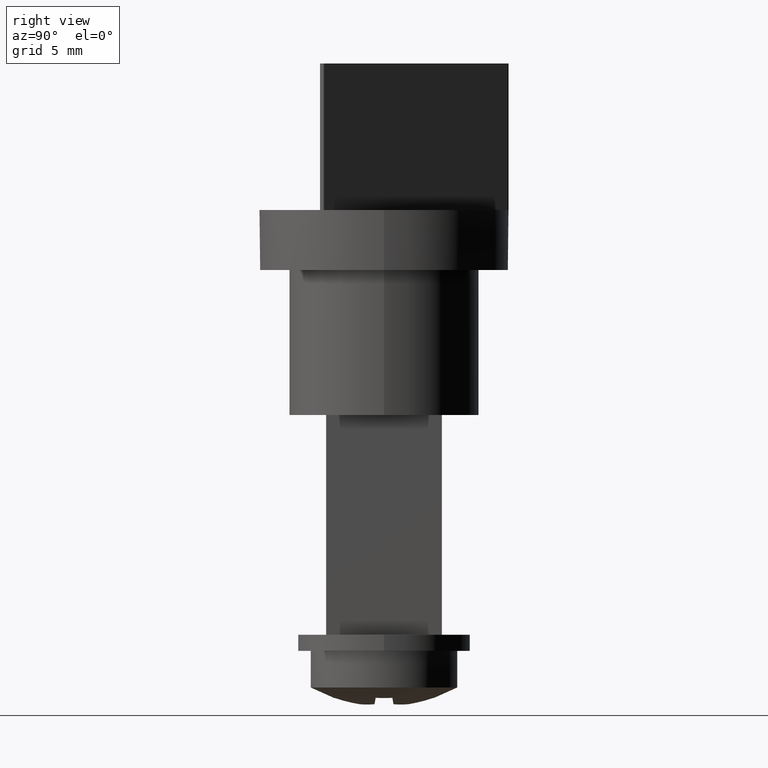
[diagram: clean part render]
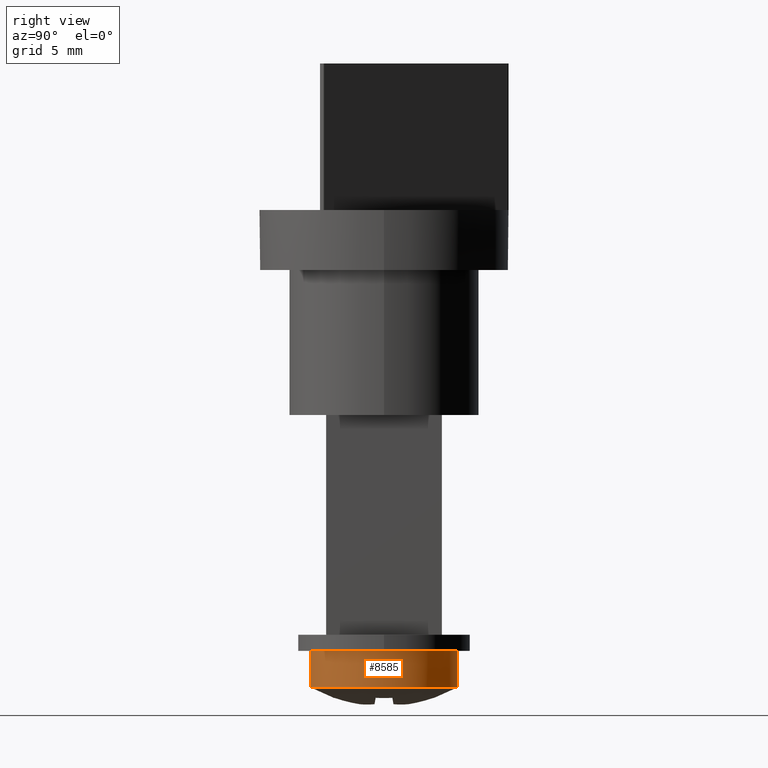
[diagram: same view with one face highlighted and labeled with its STEP entity id]
A machine part, right view. The second image highlights one B-rep face of the part: STEP entity #8585.
In plain terms, the highlighted cylindrical surface (partial cylindrical patch) has radius 5 mm, axis along (0, 0, -1).
Its self-contained STEP definition (entity closure, byte-faithful):
#65 = AXIS2_PLACEMENT_3D ( 'NONE', #333, #3984, #9191 ) ;
#90 = CIRCLE ( 'NONE', #8762, 4.999999999999998224 ) ;
#333 = CARTESIAN_POINT ( 'NONE',  ( 1.965304695223972746E-15, 7.900000000000000355, 0.000000000000000000 ) ) ;
#708 = EDGE_CURVE ( 'NONE', #13808, #4075, #14159, .T. ) ;
#1051 = CARTESIAN_POINT ( 'NONE',  ( 2.577628094797648881E-15, 6.600000000000001421, -4.999999999999998224 ) ) ;
#1259 = DIRECTION ( 'NONE',  ( -0.000000000000000000, 1.000000000000000000, -0.000000000000000000 ) ) ;
#1278 = CARTESIAN_POINT ( 'NONE',  ( 2.577628094797648881E-15, 7.900000000000000355, -4.999999999999999112 ) ) ;
#1325 = DIRECTION ( 'NONE',  ( -0.000000000000000000, 1.000000000000000000, -0.000000000000000000 ) ) ;
#2292 = DIRECTION ( 'NONE',  ( -0.000000000000000000, 1.000000000000000000, -0.000000000000000000 ) ) ;
#2485 = EDGE_CURVE ( 'NONE', #3150, #11377, #9333, .T. ) ;
#2576 = EDGE_CURVE ( 'NONE', #12429, #4075, #90, .T. ) ;
#2682 = DIRECTION ( 'NONE',  ( 0.000000000000000000, 0.000000000000000000, 1.000000000000000000 ) ) ;
#3150 = VERTEX_POINT ( 'NONE', #6968 ) ;
#3276 = CIRCLE ( 'NONE', #3339, 4.999999999999999112 ) ;
#3315 = CARTESIAN_POINT ( 'NONE',  ( 1.965304695223972746E-15, 6.600000000000001421, 0.000000000000000000 ) ) ;
#3339 = AXIS2_PLACEMENT_3D ( 'NONE', #12517, #1259, #7365 ) ;
#3555 = ORIENTED_EDGE ( 'NONE', *, *, #2485, .F. ) ;
#3561 = VECTOR ( 'NONE', #2292, 1000.000000000000000 ) ;
#3888 = ORIENTED_EDGE ( 'NONE', *, *, #12505, .F. ) ;
#3984 = DIRECTION ( 'NONE',  ( -0.000000000000000000, 1.000000000000000000, -0.000000000000000000 ) ) ;
#4075 = VERTEX_POINT ( 'NONE', #5995 ) ;
#5407 = CIRCLE ( 'NONE', #12809, 4.999999999999998224 ) ;
#5995 = CARTESIAN_POINT ( 'NONE',  ( 1.965304695223972746E-15, 6.600000000000001421, 4.999999999999998224 ) ) ;
#6004 = VECTOR ( 'NONE', #7545, 1000.000000000000000 ) ;
#6968 = CARTESIAN_POINT ( 'NONE',  ( 2.577628094797648881E-15, 4.100000000000001421, -4.999999999999999112 ) ) ;
#7230 = DIRECTION ( 'NONE',  ( 0.000000000000000000, 0.000000000000000000, 1.000000000000000000 ) ) ;
#7365 = DIRECTION ( 'NONE',  ( 0.000000000000000000, 0.000000000000000000, 1.000000000000000000 ) ) ;
#7545 = DIRECTION ( 'NONE',  ( -0.000000000000000000, 1.000000000000000000, -0.000000000000000000 ) ) ;
#8585 = ADVANCED_FACE ( 'NONE', ( #11845 ), #8671, .T. ) ;
#8625 = EDGE_LOOP ( 'NONE', ( #3555, #15273, #11628, #15262, #3888 ) ) ;
#8671 = CYLINDRICAL_SURFACE ( 'NONE', #65, 4.999999999999999112 ) ;
#8762 = AXIS2_PLACEMENT_3D ( 'NONE', #3315, #9759, #7230 ) ;
#8847 = CARTESIAN_POINT ( 'NONE',  ( 1.965304695223972746E-15, 6.600000000000001421, 0.000000000000000000 ) ) ;
#9191 = DIRECTION ( 'NONE',  ( 0.000000000000000000, 0.000000000000000000, 1.000000000000000000 ) ) ;
#9333 = LINE ( 'NONE', #1278, #6004 ) ;
#9759 = DIRECTION ( 'NONE',  ( -0.000000000000000000, 1.000000000000000000, -0.000000000000000000 ) ) ;
#11377 = VERTEX_POINT ( 'NONE', #1051 ) ;
#11628 = ORIENTED_EDGE ( 'NONE', *, *, #708, .T. ) ;
#11845 = FACE_OUTER_BOUND ( 'NONE', #8625, .T. ) ;
#12116 = CARTESIAN_POINT ( 'NONE',  ( -4.999999999999995559, 6.600000000000001421, -6.123233995736764310E-16 ) ) ;
#12429 = VERTEX_POINT ( 'NONE', #12116 ) ;
#12505 = EDGE_CURVE ( 'NONE', #11377, #12429, #5407, .T. ) ;
#12517 = CARTESIAN_POINT ( 'NONE',  ( 1.965304695223972746E-15, 4.100000000000001421, 0.000000000000000000 ) ) ;
#12809 = AXIS2_PLACEMENT_3D ( 'NONE', #8847, #1325, #2682 ) ;
#13808 = VERTEX_POINT ( 'NONE', #16208 ) ;
#14159 = LINE ( 'NONE', #15235, #3561 ) ;
#15235 = CARTESIAN_POINT ( 'NONE',  ( 1.965304695223972746E-15, 7.900000000000000355, 4.999999999999999112 ) ) ;
#15262 = ORIENTED_EDGE ( 'NONE', *, *, #2576, .F. ) ;
#15273 = ORIENTED_EDGE ( 'NONE', *, *, #15380, .T. ) ;
#15380 = EDGE_CURVE ( 'NONE', #3150, #13808, #3276, .T. ) ;
#16208 = CARTESIAN_POINT ( 'NONE',  ( 1.965304695223972746E-15, 4.100000000000001421, 4.999999999999999112 ) ) ;